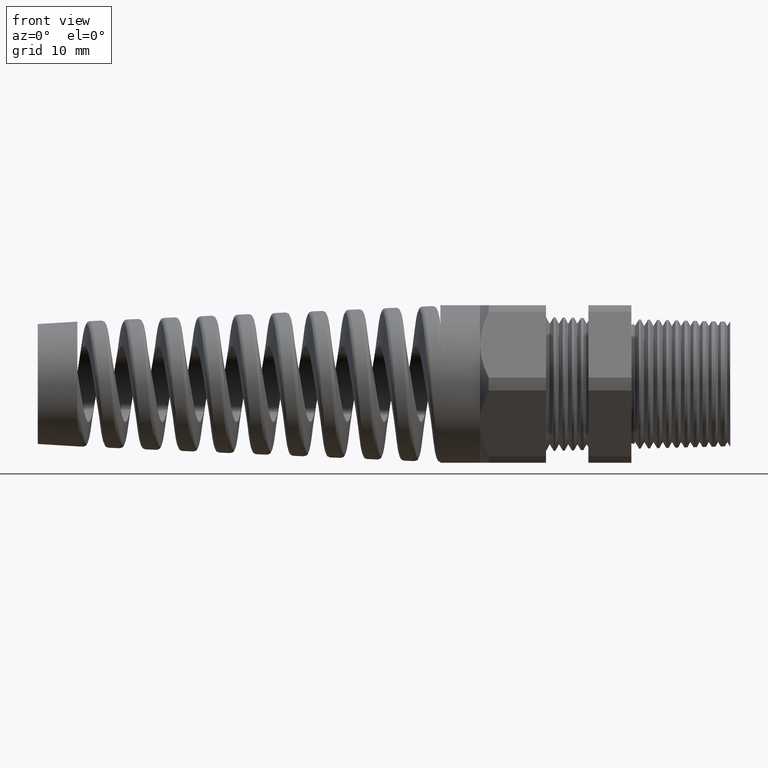
[diagram: clean part render]
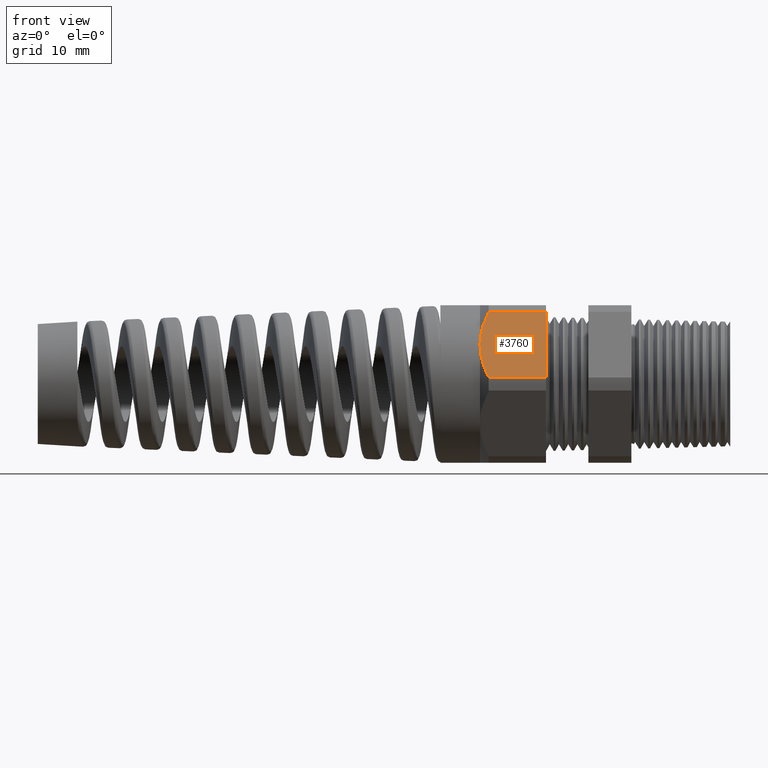
[diagram: same view with one face highlighted and labeled with its STEP entity id]
A machine part, front view. The second image highlights one B-rep face of the part: STEP entity #3760.
In plain terms, the highlighted planar face has unit normal (0, -0.866, 0.5).
Its self-contained STEP definition (entity closure, byte-faithful):
#251 = DIRECTION ( 'NONE',  ( 0.0000000000000000000, -0.4999999999999995600, -0.8660254037844389300 ) ) ;
#252 = VECTOR ( 'NONE', #251, 39.37007874015748100 ) ;
#253 = CARTESIAN_POINT ( 'NONE',  ( -0.8188188976377951400, -0.3070319397786865400, 0.4082050807568874400 ) ) ;
#254 = LINE ( 'NONE', #253, #252 ) ;
#3711 = EDGE_CURVE ( 'NONE', #3714, #9585, #6370, .T. ) ;
#3712 = ORIENTED_EDGE ( 'NONE', *, *, #3711, .T. ) ;
#3714 = VERTEX_POINT ( 'NONE', #6369 ) ;
#3720 = ORIENTED_EDGE ( 'NONE', *, *, #9967, .T. ) ;
#3731 = ORIENTED_EDGE ( 'NONE', *, *, #3741, .T. ) ;
#3735 = EDGE_LOOP ( 'NONE', ( #3720, #3731, #3712, #9584, #5064 ) ) ;
#3741 = EDGE_CURVE ( 'NONE', #9966, #3714, #6356, .T. ) ;
#3760 = ADVANCED_FACE ( 'NONE', ( #6438 ), #6437, .T. ) ;
#5064 = ORIENTED_EDGE ( 'NONE', *, *, #5087, .F. ) ;
#5087 = EDGE_CURVE ( 'NONE', #9644, #9586, #254, .T. ) ;
#6351 = CARTESIAN_POINT ( 'NONE',  ( -1.202919990934572000, -0.3584258972266239400, 0.3191881352550264300 ) ) ;
#6352 = CARTESIAN_POINT ( 'NONE',  ( -1.189376350521849800, -0.3301755151959552300, 0.3681192322653760200 ) ) ;
#6353 = CARTESIAN_POINT ( 'NONE',  ( -1.176453730715106400, -0.3118271010418955900, 0.3998996178185234000 ) ) ;
#6354 = CARTESIAN_POINT ( 'NONE',  ( -1.160819685039369900, -0.2938165587564948700, 0.4310947921287048800 ) ) ;
#6356 = B_SPLINE_CURVE_WITH_KNOTS ( 'NONE', 3,
 ( #6354, #6353, #6352, #6351, #6421, #6420, #6419, #6418, #6417, #6416 ),
 .UNSPECIFIED., .F., .F.,
 ( 4, 2, 2, 2, 4 ),
 ( 2.483251536690325700E-007, 0.002951677829872990400, 0.004427392582232653200, 0.005165249958412485000, 0.005903107334592316800 ),
 .UNSPECIFIED. ) ;
#6361 = CARTESIAN_POINT ( 'NONE',  ( -1.160819685039369900, -0.5202473208008777700, 0.03890520787129464500 ) ) ;
#6362 = CARTESIAN_POINT ( 'NONE',  ( -1.176473094533777600, -0.5022144712456755300, 0.07013901950615092400 ) ) ;
#6363 = CARTESIAN_POINT ( 'NONE',  ( -1.189577968099953400, -0.4835762490957484200, 0.1024213672325802300 ) ) ;
#6364 = CARTESIAN_POINT ( 'NONE',  ( -1.207574016859126000, -0.4458197490082085300, 0.1678175437001783200 ) ) ;
#6365 = CARTESIAN_POINT ( 'NONE',  ( -1.212519685039370200, -0.4266212606411441400, 0.2010703009804538600 ) ) ;
#6366 = CARTESIAN_POINT ( 'NONE',  ( -1.212519685039370000, -0.4070319397786862400, 0.2349999999999997900 ) ) ;
#6369 = CARTESIAN_POINT ( 'NONE',  ( -1.212519685039370000, -0.4070319397786862400, 0.2349999999999997900 ) ) ;
#6370 = B_SPLINE_CURVE_WITH_KNOTS ( 'NONE', 3,
 ( #6366, #6365, #6364, #6363, #6362, #6361 ),
 .UNSPECIFIED., .F., .F.,
 ( 4, 2, 4 ),
 ( 0.005903107334592316800, 0.008852512982428784000, 0.01180191863026524800 ),
 .UNSPECIFIED. ) ;
#6416 = CARTESIAN_POINT ( 'NONE',  ( -1.212519685039370000, -0.4070319397786862400, 0.2349999999999997900 ) ) ;
#6417 = CARTESIAN_POINT ( 'NONE',  ( -1.212519685039369600, -0.4021312490570416200, 0.2434882453220693600 ) ) ;
#6418 = CARTESIAN_POINT ( 'NONE',  ( -1.212209550361684500, -0.3971857355050538200, 0.2520541260636329800 ) ) ;
#6419 = CARTESIAN_POINT ( 'NONE',  ( -1.210977754654246000, -0.3873598765596236700, 0.2690730129851232600 ) ) ;
#6420 = CARTESIAN_POINT ( 'NONE',  ( -1.210060122264466700, -0.3824845463488702500, 0.2775173326138239400 ) ) ;
#6421 = CARTESIAN_POINT ( 'NONE',  ( -1.206456656993286000, -0.3679645453500629500, 0.3026667120697087400 ) ) ;
#6433 = DIRECTION ( 'NONE',  ( 0.0000000000000000000, -0.4999999999999995600, -0.8660254037844389300 ) ) ;
#6434 = DIRECTION ( 'NONE',  ( 0.0000000000000000000, -0.8660254037844389300, 0.4999999999999995600 ) ) ;
#6435 = CARTESIAN_POINT ( 'NONE',  ( 0.2800000000000000300, -0.5202473208008777700, 0.03890520787129467300 ) ) ;
#6436 = AXIS2_PLACEMENT_3D ( 'NONE', #6435, #6434, #6433 ) ;
#6437 = PLANE ( 'NONE',  #6436 ) ;
#6438 = FACE_OUTER_BOUND ( 'NONE', #3735, .T. ) ;
#9584 = ORIENTED_EDGE ( 'NONE', *, *, #10112, .F. ) ;
#9585 = VERTEX_POINT ( 'NONE', #12420 ) ;
#9586 = VERTEX_POINT ( 'NONE', #12419 ) ;
#9644 = VERTEX_POINT ( 'NONE', #12471 ) ;
#9966 = VERTEX_POINT ( 'NONE', #12508 ) ;
#9967 = EDGE_CURVE ( 'NONE', #9644, #9966, #12507, .T. ) ;
#10112 = EDGE_CURVE ( 'NONE', #9586, #9585, #12582, .T. ) ;
#12419 = CARTESIAN_POINT ( 'NONE',  ( -0.8188188976377951400, -0.5202473208008777700, 0.03890520787129464500 ) ) ;
#12420 = CARTESIAN_POINT ( 'NONE',  ( -1.160819685039369900, -0.5202473208008777700, 0.03890520787129464500 ) ) ;
#12471 = CARTESIAN_POINT ( 'NONE',  ( -0.8188188976377951400, -0.2938165587564948700, 0.4310947921287048800 ) ) ;
#12504 = DIRECTION ( 'NONE',  ( -1.000000000000000000, 0.0000000000000000000, 0.0000000000000000000 ) ) ;
#12505 = VECTOR ( 'NONE', #12504, 39.37007874015748100 ) ;
#12506 = CARTESIAN_POINT ( 'NONE',  ( 0.2800000000000000300, -0.2938165587564948700, 0.4310947921287048800 ) ) ;
#12507 = LINE ( 'NONE', #12506, #12505 ) ;
#12508 = CARTESIAN_POINT ( 'NONE',  ( -1.160819685039369900, -0.2938165587564948700, 0.4310947921287048800 ) ) ;
#12582 = LINE ( 'NONE', #12640, #12639 ) ;
#12638 = DIRECTION ( 'NONE',  ( -1.000000000000000000, 0.0000000000000000000, 0.0000000000000000000 ) ) ;
#12639 = VECTOR ( 'NONE', #12638, 39.37007874015748100 ) ;
#12640 = CARTESIAN_POINT ( 'NONE',  ( 0.2800000000000000300, -0.5202473208008777700, 0.03890520787129464500 ) ) ;